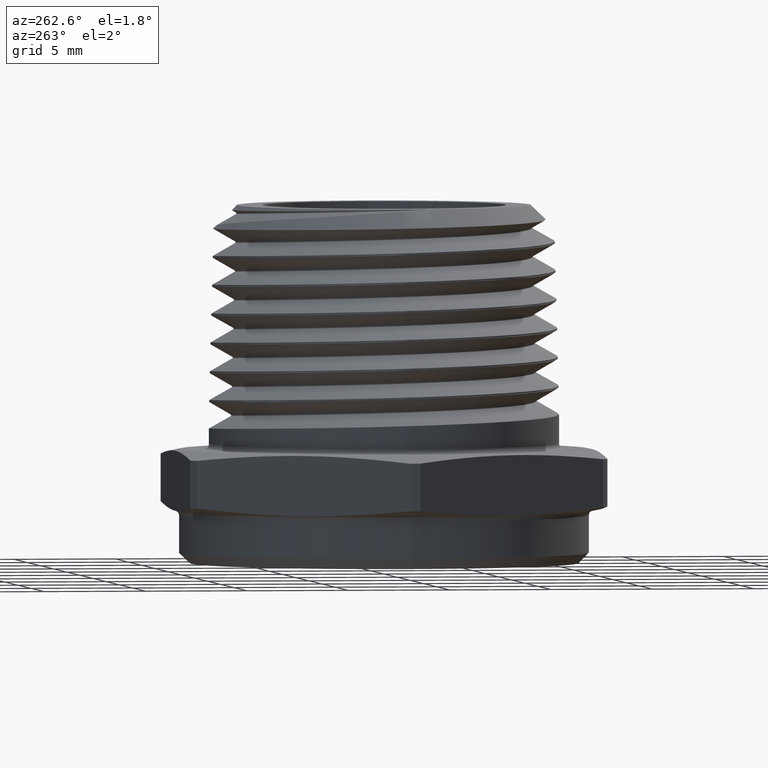
[diagram: clean part render]
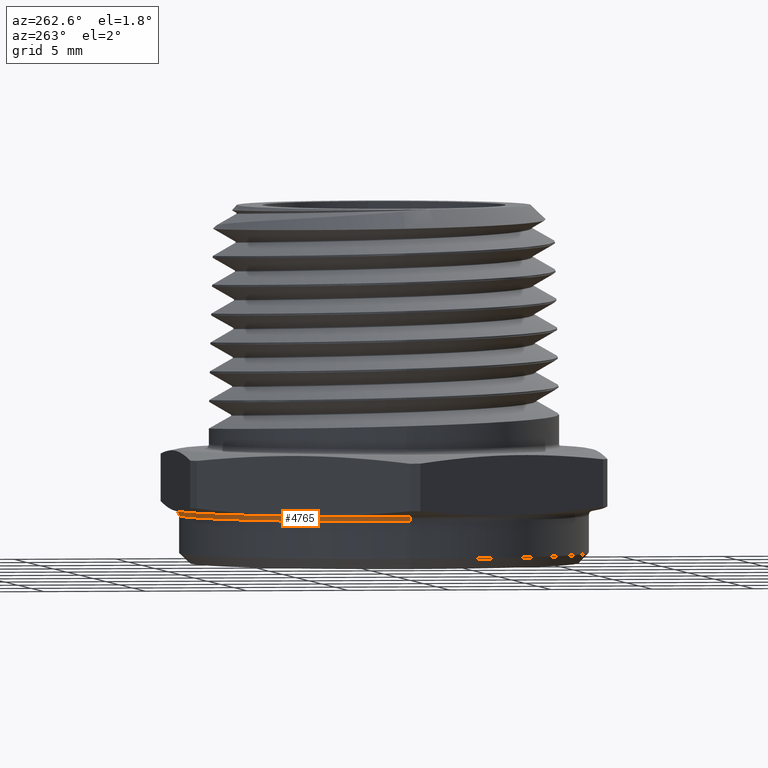
[diagram: same view with one face highlighted and labeled with its STEP entity id]
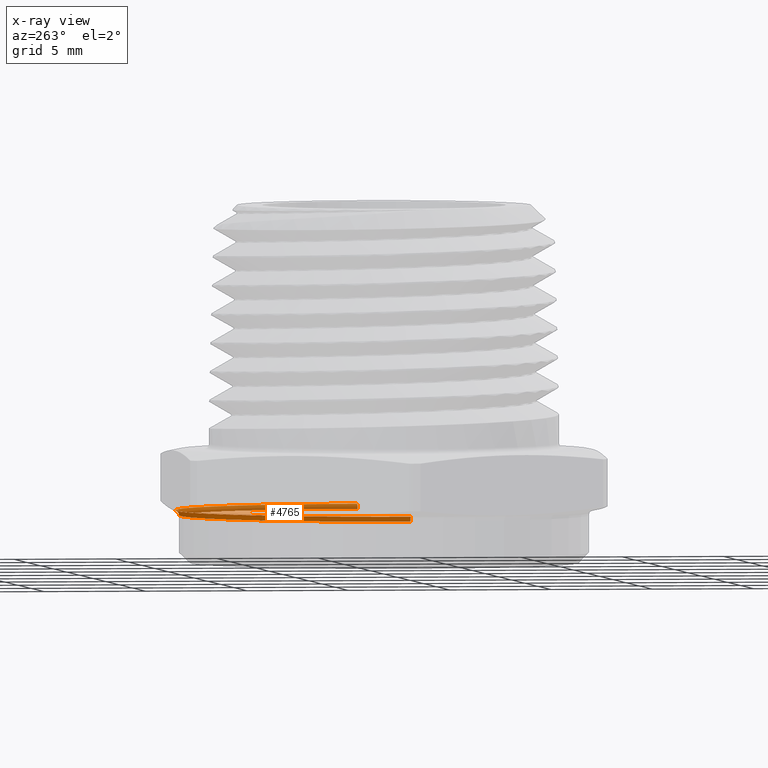
[diagram: x-ray of the same camera — body ghosted, the highlighted face saturated]
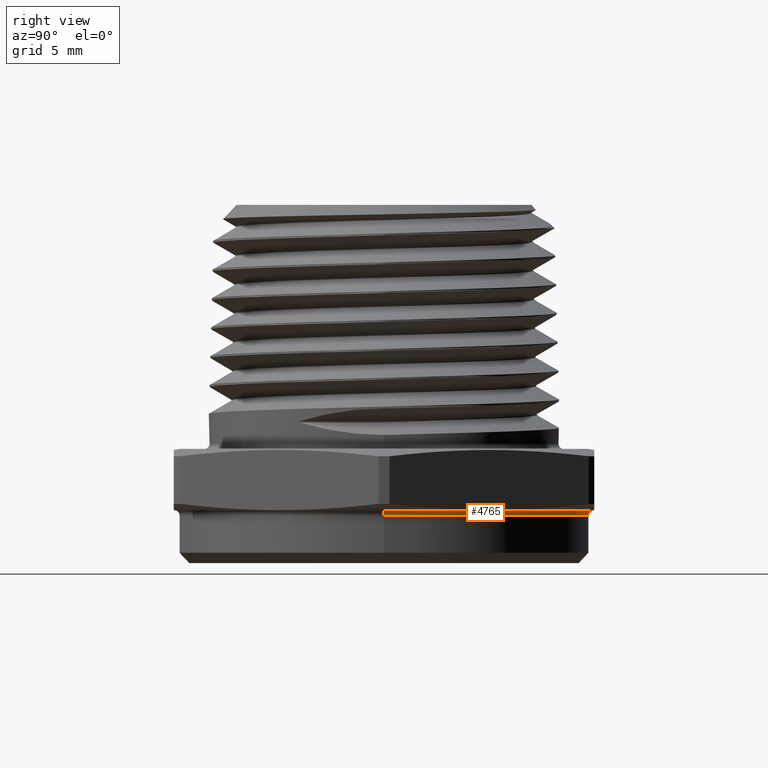
[diagram: same view with one face highlighted and labeled with its STEP entity id]
A machine part, auxiliary view. The second image highlights one B-rep face of the part: STEP entity #4765.
The next image is the same camera in x-ray: the body ghosted, the highlighted face saturated — about 45% of this face is hidden behind the body in this view.
A second angle (right view) of the same face is appended — the face is thin or edge-on in the first view.
In plain terms, the highlighted toroidal blend (fillet) surface has major radius 10.287 mm and minor (blend) radius 0.254 mm.
Its self-contained STEP definition (entity closure, byte-faithful):
#50 = ORIENTED_EDGE ( 'NONE', *, *, #2829, .F. ) ;
#51 = ORIENTED_EDGE ( 'NONE', *, *, #2826, .F. ) ;
#52 = ORIENTED_EDGE ( 'NONE', *, *, #2834, .T. ) ;
#53 = ORIENTED_EDGE ( 'NONE', *, *, #2819, .F. ) ;
#551 = CARTESIAN_POINT ( 'NONE',  ( 0.3950000000000000200, 0.0000000000000000000, -0.008097840331950146400 ) ) ;
#659 = DIRECTION ( 'NONE',  ( -0.0000000000000000000, -0.0000000000000000000, -1.000000000000000000 ) ) ;
#664 = CARTESIAN_POINT ( 'NONE',  ( 0.0000000000000000000, 0.0000000000000000000, -0.008097840331950143000 ) ) ;
#667 = DIRECTION ( 'NONE',  ( -1.000000000000000000, 0.0000000000000000000, 0.0000000000000000000 ) ) ;
#807 = TOROIDAL_SURFACE ( 'NONE', #4297, 0.4050000000000000300, 0.01000000000000000000 ) ;
#808 = FACE_OUTER_BOUND ( 'NONE', #1916, .T. ) ;
#1098 = CARTESIAN_POINT ( 'NONE',  ( -0.4029208830918216100, 4.934357697880242300E-017, 0.001683635675387737400 ) ) ;
#1099 = CARTESIAN_POINT ( 'NONE',  ( 0.4029208830918216100, 0.0000000000000000000, 0.001683635675387737400 ) ) ;
#1101 = CARTESIAN_POINT ( 'NONE',  ( -0.3950000000000000200, 4.837354856632045600E-017, -0.008097840331950146400 ) ) ;
#1916 = EDGE_LOOP ( 'NONE', ( #50, #51, #52, #53 ) ) ;
#1984 = CIRCLE ( 'NONE', #2902, 0.4029208830918225600 ) ;
#1992 = CIRCLE ( 'NONE', #2910, 0.01000000000000003000 ) ;
#1993 = CIRCLE ( 'NONE', #2908, 0.3950000000000000200 ) ;
#2000 = CIRCLE ( 'NONE', #4269, 0.01000000000000000000 ) ;
#2819 = EDGE_CURVE ( 'NONE', #4860, #4859, #1984, .T. ) ;
#2826 = EDGE_CURVE ( 'NONE', #4862, #4745, #1993, .T. ) ;
#2829 = EDGE_CURVE ( 'NONE', #4745, #4860, #1992, .T. ) ;
#2834 = EDGE_CURVE ( 'NONE', #4862, #4859, #2000, .T. ) ;
#2902 = AXIS2_PLACEMENT_3D ( 'NONE', #3967, #3969, #3971 ) ;
#2908 = AXIS2_PLACEMENT_3D ( 'NONE', #4013, #4015, #4017 ) ;
#2910 = AXIS2_PLACEMENT_3D ( 'NONE', #4038, #4040, #4042 ) ;
#3967 = CARTESIAN_POINT ( 'NONE',  ( 0.0000000000000000000, 0.0000000000000000000, 0.001683635675387737400 ) ) ;
#3969 = DIRECTION ( 'NONE',  ( 0.0000000000000000000, 0.0000000000000000000, 1.000000000000000000 ) ) ;
#3971 = DIRECTION ( 'NONE',  ( 1.000000000000000000, 0.0000000000000000000, 0.0000000000000000000 ) ) ;
#4013 = CARTESIAN_POINT ( 'NONE',  ( 0.0000000000000000000, 0.0000000000000000000, -0.008097840331950146400 ) ) ;
#4015 = DIRECTION ( 'NONE',  ( -0.0000000000000000000, -0.0000000000000000000, -1.000000000000000000 ) ) ;
#4017 = DIRECTION ( 'NONE',  ( -1.000000000000000000, 0.0000000000000000000, 0.0000000000000000000 ) ) ;
#4038 = CARTESIAN_POINT ( 'NONE',  ( 0.4050000000000000300, 4.959819536546781200E-017, -0.008097840331950143000 ) ) ;
#4040 = DIRECTION ( 'NONE',  ( -1.224646799147353200E-016, 1.000000000000000000, 0.0000000000000000000 ) ) ;
#4042 = DIRECTION ( 'NONE',  ( -1.000000000000000000, -1.224646799147346800E-016, 0.0000000000000000000 ) ) ;
#4069 = CARTESIAN_POINT ( 'NONE',  ( -0.4050000000000000300, 0.0000000000000000000, -0.008097840331950143000 ) ) ;
#4070 = DIRECTION ( 'NONE',  ( 0.0000000000000000000, -1.000000000000000000, 0.0000000000000000000 ) ) ;
#4072 = DIRECTION ( 'NONE',  ( 0.0000000000000000000, 0.0000000000000000000, -1.000000000000000000 ) ) ;
#4269 = AXIS2_PLACEMENT_3D ( 'NONE', #4069, #4070, #4072 ) ;
#4297 = AXIS2_PLACEMENT_3D ( 'NONE', #664, #659, #667 ) ;
#4745 = VERTEX_POINT ( 'NONE', #551 ) ;
#4765 = ADVANCED_FACE ( 'NONE', ( #808 ), #807, .F. ) ;
#4859 = VERTEX_POINT ( 'NONE', #1098 ) ;
#4860 = VERTEX_POINT ( 'NONE', #1099 ) ;
#4862 = VERTEX_POINT ( 'NONE', #1101 ) ;